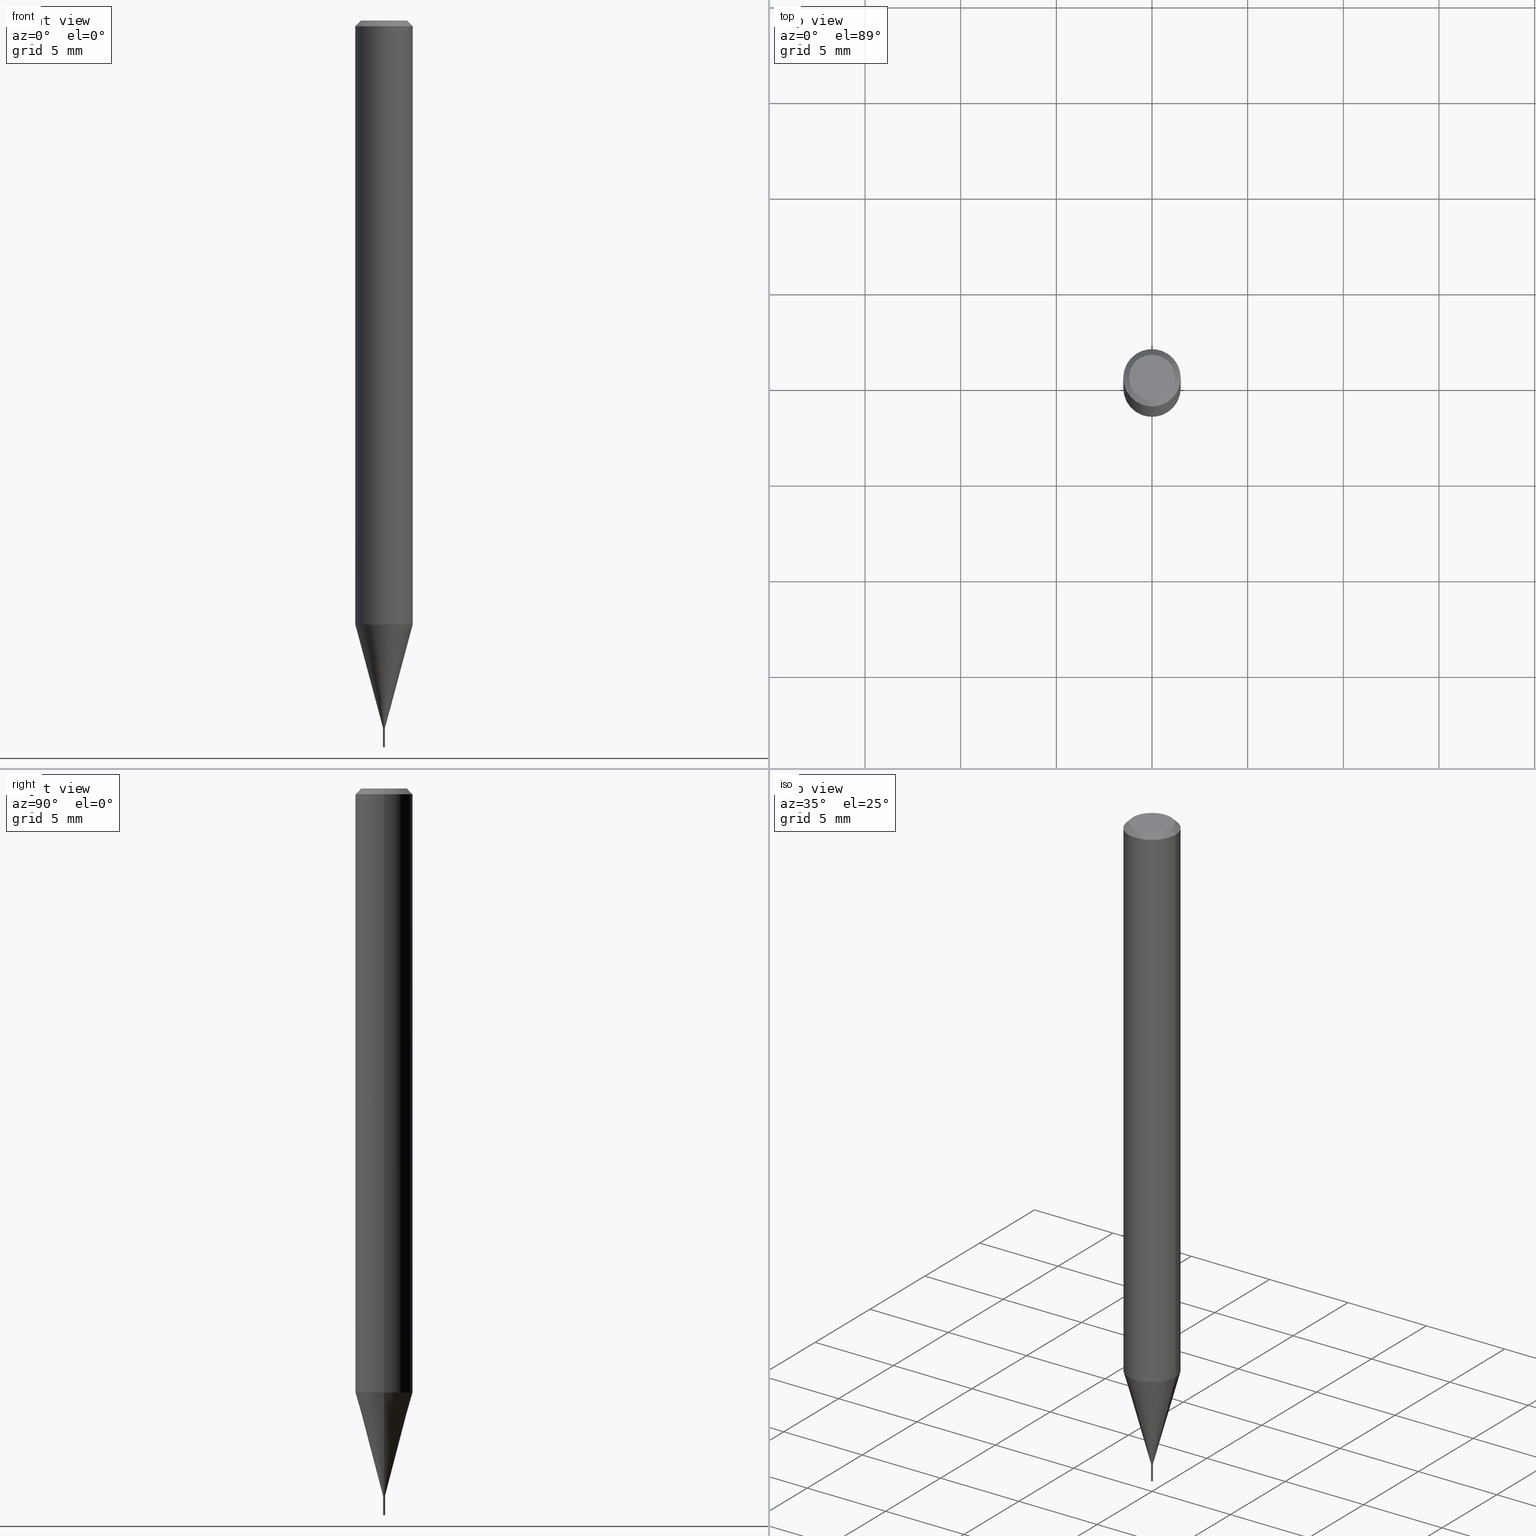
[diagram: canonical four-view strip — front | top / right | iso, engineering-drawing reading convention]
A machine part, canonical four-view strip (front | top / right | iso — engineering-drawing reading convention). The complete STEP part file that produces these views, byte-faithful:
ISO-10303-21;
HEADER;
FILE_DESCRIPTION (( 'STEP AP203' ),
    '1' );
FILE_NAME ('08234.STEP',
    '2024-04-24T13:52:40',
    ( '' ),
    ( '' ),
    'SwSTEP 2.0',
    'SolidWorks 2023',
    '' );
FILE_SCHEMA (( 'CONFIG_CONTROL_DESIGN' ));
ENDSEC;

DATA;
#1 = LINE ( 'NONE', #305, #159 ) ;
#2 = ORIENTED_EDGE ( 'NONE', *, *, #13, .F. ) ;
#3 = CARTESIAN_POINT ( 'NONE',  ( 3.632222364028806804E-29, -5.261473852322382028E-15, -1.496099999999999985 ) ) ;
#4 = EDGE_LOOP ( 'NONE', ( #396, #474, #289, #187 ) ) ;
#5 = CALENDAR_DATE ( 2024, 24, 4 ) ;
#6 = AXIS2_PLACEMENT_3D ( 'NONE', #174, #472, #475 ) ;
#7 = FACE_OUTER_BOUND ( 'NONE', #198, .T. ) ;
#8 = VERTEX_POINT ( 'NONE', #139 ) ;
#9 = APPLICATION_PROTOCOL_DEFINITION ( 'international standard', 'config_control_design', 1994, #88 ) ;
#10 = DIRECTION ( 'NONE',  ( 2.427793840003212946E-29, -3.516792896412260178E-15, -1.000000000000000000 ) ) ;
#11 = COORDINATED_UNIVERSAL_TIME_OFFSET ( 5, 0, .BEHIND. ) ;
#12 = LINE ( 'NONE', #247, #114 ) ;
#13 = EDGE_CURVE ( 'NONE', #83, #387, #425, .T. ) ;
#14 = CONICAL_SURFACE ( 'NONE', #283, 65.52281426576558943, 1.029744258676635216 ) ;
#15 = CALENDAR_DATE ( 2024, 24, 4 ) ;
#16 = CARTESIAN_POINT ( 'NONE',  ( 0.05905000000000017180, -4.752254897268105035E-15, -1.242999898887816812 ) ) ;
#17 = ORIENTED_EDGE ( 'NONE', *, *, #290, .T. ) ;
#18 = DIRECTION ( 'NONE',  ( 1.000000000000000000, -6.982962677686266711E-15, 4.876176775795935793E-29 ) ) ;
#19 = SECURITY_CLASSIFICATION ( '', '', #164 ) ;
#20 = ORIENTED_EDGE ( 'NONE', *, *, #169, .T. ) ;
#21 = CONICAL_SURFACE ( 'NONE', #471, 0.05904999999999999832, 0.7853981633974452814 ) ;
#22 = DIRECTION ( 'NONE',  ( -2.445468806185136597E-29, 3.491481338843145583E-15, 1.000000000000000000 ) ) ;
#23 = CARTESIAN_POINT ( 'NONE',  ( 3.561091675566795553E-29, -5.084295125623388153E-15, -1.456199999999999939 ) ) ;
#24 = DIRECTION ( 'NONE',  ( -1.000000000000000000, 6.982962677686266711E-15, 0.000000000000000000 ) ) ;
#25 = CARTESIAN_POINT ( 'NONE',  ( 3.560847128686176768E-29, -5.083945977489503852E-15, -1.456099999999999728 ) ) ;
#26 = EDGE_CURVE ( 'NONE', #260, #214, #173, .T. ) ;
#27 = CARTESIAN_POINT ( 'NONE',  ( 3.562314409969888354E-29, -5.086040866292809657E-15, -1.456699999999999884 ) ) ;
#28 = EDGE_CURVE ( 'NONE', #387, #83, #450, .T. ) ;
#29 = DIRECTION ( 'NONE',  ( 2.445468806185136597E-29, -3.491481338843145583E-15, -1.000000000000000000 ) ) ;
#30 = APPLICATION_PROTOCOL_DEFINITION ( 'international standard', 'config_control_design', 1994, #331 ) ;
#31 = EDGE_LOOP ( 'NONE', ( #285, #369, #118, #183 ) ) ;
#32 = CARTESIAN_POINT ( 'NONE',  ( 0.000000000000000000, 0.000000000000000000, 0.000000000000000000 ) ) ;
#33 = DIRECTION ( 'NONE',  ( -2.445468806185136597E-29, 3.491481338843145583E-15, 1.000000000000000000 ) ) ;
#34 = ADVANCED_FACE ( 'NONE', ( #256 ), #327, .T. ) ;
#35 = DIRECTION ( 'NONE',  ( -5.985567269335875015E-15, -0.8571673007021006763, 0.5150380749100736955 ) ) ;
#36 = VECTOR ( 'NONE', #86, 39.37007874015748143 ) ;
#37 = CARTESIAN_POINT ( 'NONE',  ( 0.000000000000000000, 0.000000000000000000, 0.000000000000000000 ) ) ;
#38 = EDGE_LOOP ( 'NONE', ( #44, #434, #430, #2 ) ) ;
#39 = DIRECTION ( 'NONE',  ( -2.438088387897960049E-29, 3.491481338843145188E-15, 1.000000000000000000 ) ) ;
#40 = CARTESIAN_POINT ( 'NONE',  ( 2.888098660104664204E-31, -4.123439461173780263E-17, -0.01181000000000007218 ) ) ;
#41 = CC_DESIGN_PERSON_AND_ORGANIZATION_ASSIGNMENT ( #50, #348, ( #341 ) ) ;
#42 = DIRECTION ( 'NONE',  ( -2.445468806185136877E-29, 3.491481338843145188E-15, 1.000000000000000000 ) ) ;
#43 = EDGE_CURVE ( 'NONE', #273, #142, #107, .T. ) ;
#44 = ORIENTED_EDGE ( 'NONE', *, *, #195, .F. ) ;
#45 = DATE_AND_TIME ( #15, #372 ) ;
#46 = AXIS2_PLACEMENT_3D ( 'NONE', #488, #117, #267 ) ;
#47 = APPROVAL_PERSON_ORGANIZATION ( #244, #170, #165 ) ;
#48 = CC_DESIGN_DATE_AND_TIME_ASSIGNMENT ( #52, #167, ( #19 ) ) ;
#49 = DATE_AND_TIME ( #354, #435 ) ;
#50 = PERSON_AND_ORGANIZATION ( #412, #349 ) ;
#51 = CC_DESIGN_DATE_AND_TIME_ASSIGNMENT ( #49, #462, ( #404 ) ) ;
#52 = DATE_AND_TIME ( #395, #478 ) ;
#53 = AXIS2_PLACEMENT_3D ( 'NONE', #37, #194, #309 ) ;
#54 = ORIENTED_EDGE ( 'NONE', *, *, #225, .T. ) ;
#55 = EDGE_LOOP ( 'NONE', ( #137, #222, #381, #468 ) ) ;
#56 = FACE_OUTER_BOUND ( 'NONE', #315, .T. ) ;
#57 = ORIENTED_EDGE ( 'NONE', *, *, #241, .F. ) ;
#58 = ADVANCED_FACE ( 'NONE', ( #339 ), #21, .T. ) ;
#59 = DIRECTION ( 'NONE',  ( 2.438088387897960049E-29, -3.491481338843145188E-15, -1.000000000000000000 ) ) ;
#60 = DIRECTION ( 'NONE',  ( -6.982962677686265922E-15, -1.000000000000000000, 0.000000000000000000 ) ) ;
#61 = CIRCLE ( 'NONE', #101, 0.05905000000000017180 ) ;
#62 = DIRECTION ( 'NONE',  ( -2.445468806185136597E-29, 3.491481338843145583E-15, 1.000000000000000000 ) ) ;
#63 = VERTEX_POINT ( 'NONE', #102 ) ;
#64 = EDGE_CURVE ( 'NONE', #142, #273, #61, .T. ) ;
#65 = EDGE_LOOP ( 'NONE', ( #301, #296, #202, #68 ) ) ;
#66 = CARTESIAN_POINT ( 'NONE',  ( 1.385558334735851946E-17, 0.001949999999994914135, -1.456699999999999884 ) ) ;
#67 = LOCAL_TIME ( 9, 52, 40.00000000000000000, #123 ) ;
#68 = ORIENTED_EDGE ( 'NONE', *, *, #446, .F. ) ;
#69 = CIRCLE ( 'NONE', #431, 0.001949999999999999910 ) ;
#70 =( LENGTH_UNIT ( ) NAMED_UNIT ( * ) SI_UNIT ( $, .METRE. ) );
#71 = CARTESIAN_POINT ( 'NONE',  ( -1.361677722145259425E-17, -0.001950000000005085686, -1.456699999999999884 ) ) ;
#72 = EDGE_CURVE ( 'NONE', #317, #214, #411, .T. ) ;
#73 = LINE ( 'NONE', #116, #334 ) ;
#74 = DIRECTION ( 'NONE',  ( 1.000000000000000000, -6.982962677686433160E-15, 0.000000000000000000 ) ) ;
#75 = DESIGN_CONTEXT ( 'detailed design', #88, 'design' ) ;
#76 = DIRECTION ( 'NONE',  ( 1.000000000000000000, -6.982962677686159425E-15, 0.000000000000000000 ) ) ;
#77 = VERTEX_POINT ( 'NONE', #3 ) ;
#78 = AXIS2_PLACEMENT_3D ( 'NONE', #422, #33, #76 ) ;
#79 = DIRECTION ( 'NONE',  ( -2.427793840003213226E-29, 3.516792896412260178E-15, 1.000000000000000000 ) ) ;
#80 = CARTESIAN_POINT ( 'NONE',  ( -9.192446515852977334E-28, 1.332318107381657182E-13, 37.87397874015748300 ) ) ;
#81 = ORIENTED_EDGE ( 'NONE', *, *, #485, .F. ) ;
#82 = DIRECTION ( 'NONE',  ( 1.000000000000000000, -6.982962677686266711E-15, 4.876185090822587894E-29 ) ) ;
#83 = VERTEX_POINT ( 'NONE', #229 ) ;
#84 = CIRCLE ( 'NONE', #6, 0.001949999999999999910 ) ;
#85 = PERSON_AND_ORGANIZATION ( #412, #349 ) ;
#86 = DIRECTION ( 'NONE',  ( -0.2588190451025214611, 5.211531920934550253E-15, 0.9659258262890679791 ) ) ;
#87 = APPROVAL_DATE_TIME ( #316, #465 ) ;
#88 = APPLICATION_CONTEXT ( 'configuration controlled 3d designs of mechanical parts and assemblies' ) ;
#89 = ORIENTED_EDGE ( 'NONE', *, *, #399, .F. ) ;
#90 = APPROVAL_PERSON_ORGANIZATION ( #392, #138, #357 ) ;
#91 = CONICAL_SURFACE ( 'NONE', #228, 0.05904999999999999832, 0.7853981633974452814 ) ;
#92 = VECTOR ( 'NONE', #481, 39.37007874015748143 ) ;
#93 = ORIENTED_EDGE ( 'NONE', *, *, #28, .T. ) ;
#94 = ADVANCED_FACE ( 'NONE', ( #189 ), #106, .T. ) ;
#95 = EDGE_LOOP ( 'NONE', ( #172, #235, #89, #470 ) ) ;
#96 = FACE_OUTER_BOUND ( 'NONE', #125, .T. ) ;
#97 = ORIENTED_EDGE ( 'NONE', *, *, #467, .T. ) ;
#98 = DIRECTION ( 'NONE',  ( 1.000000000000000000, -6.982962677686266711E-15, 4.876185090822587894E-29 ) ) ;
#99 = ADVANCED_FACE ( 'NONE', ( #231 ), #140, .T. ) ;
#100 = DIRECTION ( 'NONE',  ( 1.000000000000000000, -6.982962677686159425E-15, 0.000000000000000000 ) ) ;
#101 = AXIS2_PLACEMENT_3D ( 'NONE', #255, #337, #403 ) ;
#102 = CARTESIAN_POINT ( 'NONE',  ( 0.001949999999999999910, -5.097562754710991580E-15, -1.456099999999999728 ) ) ;
#103 = CYLINDRICAL_SURFACE ( 'NONE', #105, 0.001949999999999999910 ) ;
#104 = CARTESIAN_POINT ( 'NONE',  ( -1.361677722145259733E-17, -0.001950000000005086337, -1.456699999999999884 ) ) ;
#105 = AXIS2_PLACEMENT_3D ( 'NONE', #181, #444, #18 ) ;
#106 = CYLINDRICAL_SURFACE ( 'NONE', #46, 0.001950000000000000344 ) ;
#107 = CIRCLE ( 'NONE', #149, 0.05905000000000017180 ) ;
#108 = DIRECTION ( 'NONE',  ( -6.982962677686265922E-15, -1.000000000000000000, 0.000000000000000000 ) ) ;
#109 = CARTESIAN_POINT ( 'NONE',  ( 0.000000000000000000, 0.000000000000000000, 0.000000000000000000 ) ) ;
#110 = CARTESIAN_POINT ( 'NONE',  ( -9.192446515852977334E-28, 1.332318107381657182E-13, 37.87397874015748300 ) ) ;
#111 = CYLINDRICAL_SURFACE ( 'NONE', #313, 0.001950000000000000344 ) ;
#112 = FACE_OUTER_BOUND ( 'NONE', #227, .T. ) ;
#113 = CLOSED_SHELL ( 'NONE', ( #394, #153, #127, #94, #239 ) ) ;
#114 = VECTOR ( 'NONE', #208, 39.37007874015748854 ) ;
#115 = ORIENTED_EDGE ( 'NONE', *, *, #277, .F. ) ;
#116 = CARTESIAN_POINT ( 'NONE',  ( -0.05904999999999999832, 3.711095515056362547E-16, -0.01181000000000007218 ) ) ;
#117 = DIRECTION ( 'NONE',  ( -2.427793840003213226E-29, 3.516792896412260178E-15, 1.000000000000000000 ) ) ;
#118 = ORIENTED_EDGE ( 'NONE', *, *, #485, .T. ) ;
#119 = ORIENTED_EDGE ( 'NONE', *, *, #72, .T. ) ;
#120 = DATE_AND_TIME ( #5, #67 ) ;
#121 = LINE ( 'NONE', #281, #36 ) ;
#122 = AXIS2_PLACEMENT_3D ( 'NONE', #109, #377, #448 ) ;
#123 = COORDINATED_UNIVERSAL_TIME_OFFSET ( 5, 0, .BEHIND. ) ;
#124 = APPROVAL_STATUS ( 'not_yet_approved' ) ;
#125 = EDGE_LOOP ( 'NONE', ( #93, #17, #362, #154 ) ) ;
#126 = MANIFOLD_SOLID_BREP ( 'Body-Move/Copy2[1]', #113 ) ;
#127 = ADVANCED_FACE ( 'NONE', ( #344 ), #364, .T. ) ;
#128 = APPROVAL_PERSON_ORGANIZATION ( #355, #465, #433 ) ;
#129 = AXIS2_PLACEMENT_3D ( 'NONE', #440, #438, #480 ) ;
#130 = VECTOR ( 'NONE', #424, 39.37007874015748143 ) ;
#131 = ORIENTED_EDGE ( 'NONE', *, *, #248, .F. ) ;
#132 = EDGE_CURVE ( 'NONE', #387, #63, #483, .T. ) ;
#133 = DIRECTION ( 'NONE',  ( 1.000000000000000000, -6.982962677686433160E-15, 0.000000000000000000 ) ) ;
#134 = ORIENTED_EDGE ( 'NONE', *, *, #195, .T. ) ;
#135 = CARTESIAN_POINT ( 'NONE',  ( -0.001949999999999999910, 1.385558334732195299E-17, -9.591923425997065611E-32 ) ) ;
#136 = ADVANCED_FACE ( 'NONE', ( #311 ), #166, .T. ) ;
#137 = ORIENTED_EDGE ( 'NONE', *, *, #290, .F. ) ;
#138 = APPROVAL ( #246, 'UNSPECIFIED' ) ;
#139 = CARTESIAN_POINT ( 'NONE',  ( -0.001449999999999999900, -5.073088769450176560E-15, -1.456699999999999884 ) ) ;
#140 = CONICAL_SURFACE ( 'NONE', #286, 0.001449999999999999900, 0.7853981633975491983 ) ;
#141 = DIRECTION ( 'NONE',  ( -2.427793840003213226E-29, 3.516792896412260178E-15, 1.000000000000000000 ) ) ;
#142 = VERTEX_POINT ( 'NONE', #458 ) ;
#143 = CARTESIAN_POINT ( 'NONE',  ( 0.001449999999999999900, -5.096166162175455166E-15, -1.456699999999999884 ) ) ;
#144 = CARTESIAN_POINT ( 'NONE',  ( 2.888098660104664204E-31, -4.123439461173780263E-17, -0.01181000000000007218 ) ) ;
#145 = EDGE_CURVE ( 'NONE', #142, #168, #1, .T. ) ;
#146 = DIRECTION ( 'NONE',  ( -2.427793840003213226E-29, 3.516792896412260178E-15, 1.000000000000000000 ) ) ;
#147 = CONICAL_SURFACE ( 'NONE', #389, 0.001449999999999999900, 0.7853981633975491983 ) ;
#148 = DIRECTION ( 'NONE',  ( -6.982962677686265133E-15, -1.000000000000000000, 3.602282186708734483E-15 ) ) ;
#149 = AXIS2_PLACEMENT_3D ( 'NONE', #445, #180, #332 ) ;
#150 = CARTESIAN_POINT ( 'NONE',  ( 0.001949999999999999910, -5.097562754710991580E-15, -1.456099999999999728 ) ) ;
#151 = CARTESIAN_POINT ( 'NONE',  ( -0.001449999999999999900, -5.075737996624287761E-15, -1.456699999999999884 ) ) ;
#152 = CARTESIAN_POINT ( 'NONE',  ( 3.632222364028806804E-29, -5.261473852322381240E-15, -1.496099999999999985 ) ) ;
#153 = ADVANCED_FACE ( 'NONE', ( #112 ), #14, .T. ) ;
#154 = ORIENTED_EDGE ( 'NONE', *, *, #132, .F. ) ;
#155 = CARTESIAN_POINT ( 'NONE',  ( -0.001949999999999999910, -5.070264968209125181E-15, -1.456099999999999728 ) ) ;
#156 = CARTESIAN_POINT ( 'NONE',  ( 3.562314409969888354E-29, -5.086040866292809657E-15, -1.456699999999999884 ) ) ;
#157 = ADVANCED_FACE ( 'NONE', ( #7 ), #423, .T. ) ;
#158 = AXIS2_PLACEMENT_3D ( 'NONE', #179, #335, #98 ) ;
#159 = VECTOR ( 'NONE', #350, 39.37007874015748143 ) ;
#160 = ORIENTED_EDGE ( 'NONE', *, *, #26, .T. ) ;
#161 = PERSON_AND_ORGANIZATION ( #412, #349 ) ;
#162 = PLANE ( 'NONE',  #257 ) ;
#163 = EDGE_LOOP ( 'NONE', ( #373, #134, #326, #131 ) ) ;
#164 = SECURITY_CLASSIFICATION_LEVEL ( 'unclassified' ) ;
#165 = APPROVAL_ROLE ( '' ) ;
#166 = CONICAL_SURFACE ( 'NONE', #78, 0.001949999999999999910, 0.2617993877991501850 ) ;
#167 = DATE_TIME_ROLE ( 'classification_date' ) ;
#168 = VERTEX_POINT ( 'NONE', #380 ) ;
#169 = EDGE_CURVE ( 'NONE', #77, #317, #265, .T. ) ;
#170 = APPROVAL ( #124, 'UNSPECIFIED' ) ;
#171 = CYLINDRICAL_SURFACE ( 'NONE', #242, 0.001949999999999999910 ) ;
#172 = ORIENTED_EDGE ( 'NONE', *, *, #360, .T. ) ;
#173 = CIRCLE ( 'NONE', #209, 0.001949999999999999910 ) ;
#174 = CARTESIAN_POINT ( 'NONE',  ( 3.560847128686176768E-29, -5.083945977489503852E-15, -1.456099999999999728 ) ) ;
#175 =( GEOMETRIC_REPRESENTATION_CONTEXT ( 3 ) GLOBAL_UNCERTAINTY_ASSIGNED_CONTEXT ( ( #400 ) ) GLOBAL_UNIT_ASSIGNED_CONTEXT ( ( #268, #378, #490 ) ) REPRESENTATION_CONTEXT ( 'NONE', 'WORKASPACE' ) );
#176 = ORIENTED_EDGE ( 'NONE', *, *, #336, .F. ) ;
#177 = CARTESIAN_POINT ( 'NONE',  ( 3.655124894132341862E-29, -5.220481956815828847E-15, -1.494928321792896142 ) ) ;
#178 = VERTEX_POINT ( 'NONE', #192 ) ;
#179 = CARTESIAN_POINT ( 'NONE',  ( 8.265746106709734507E-48, -1.180129479067563789E-33, -3.380025165646692144E-19 ) ) ;
#180 = DIRECTION ( 'NONE',  ( -2.445468806185136597E-29, 3.491481338843145583E-15, 1.000000000000000000 ) ) ;
#181 = CARTESIAN_POINT ( 'NONE',  ( 0.000000000000000000, 0.000000000000000000, 0.000000000000000000 ) ) ;
#182 = AXIS2_PLACEMENT_3D ( 'NONE', #271, #427, #82 ) ;
#183 = ORIENTED_EDGE ( 'NONE', *, *, #232, .T. ) ;
#184 = AXIS2_PLACEMENT_3D ( 'NONE', #177, #141, #479 ) ;
#185 = CC_DESIGN_PERSON_AND_ORGANIZATION_ASSIGNMENT ( #161, #280, ( #203 ) ) ;
#186 = DIRECTION ( 'NONE',  ( 1.000000000000000000, 0.000000000000000000, 0.000000000000000000 ) ) ;
#187 = ORIENTED_EDGE ( 'NONE', *, *, #489, .F. ) ;
#188 = DIRECTION ( 'NONE',  ( 0.000000000000000000, 0.000000000000000000, 1.000000000000000000 ) ) ;
#189 = FACE_OUTER_BOUND ( 'NONE', #482, .T. ) ;
#190 = EDGE_CURVE ( 'NONE', #63, #455, #407, .T. ) ;
#191 = DIRECTION ( 'NONE',  ( -2.427793840003213226E-29, 3.516792896412260178E-15, 1.000000000000000000 ) ) ;
#192 = CARTESIAN_POINT ( 'NONE',  ( -0.04724000000000000421, 3.504923541997677355E-16, -3.380025165670481712E-19 ) ) ;
#193 = VECTOR ( 'NONE', #237, 39.37007874015748854 ) ;
#194 = DIRECTION ( 'NONE',  ( -2.445468806185136597E-29, 3.491481338843145583E-15, 1.000000000000000000 ) ) ;
#195 = EDGE_CURVE ( 'NONE', #8, #83, #233, .T. ) ;
#196 = DIRECTION ( 'NONE',  ( 1.000000000000000000, -6.982962677686265922E-15, 4.876176775795935793E-29 ) ) ;
#197 = DIRECTION ( 'NONE',  ( -2.445468806185136597E-29, 3.491481338843145583E-15, 1.000000000000000000 ) ) ;
#198 = EDGE_LOOP ( 'NONE', ( #292, #371, #461, #310 ) ) ;
#199 = CARTESIAN_POINT ( 'NONE',  ( 0.05904999999999999832, -4.535783407291118600E-16, -0.01181000000000007218 ) ) ;
#200 = CC_DESIGN_SECURITY_CLASSIFICATION ( #19, ( #203 ) ) ;
#201 = CLOSED_SHELL ( 'NONE', ( #367, #278, #215, #136, #390, #314, #34, #157, #58, #299, #477, #99 ) ) ;
#202 = ORIENTED_EDGE ( 'NONE', *, *, #43, .F. ) ;
#203 = PRODUCT_DEFINITION_FORMATION_WITH_SPECIFIED_SOURCE ( 'ANY', '', #341, .NOT_KNOWN. ) ;
#204 = APPROVAL_DATE_TIME ( #45, #170 ) ;
#205 = CARTESIAN_POINT ( 'NONE',  ( 3.562314409969888354E-29, -5.086040866292809657E-15, -1.456699999999999884 ) ) ;
#206 = EDGE_CURVE ( 'NONE', #213, #168, #464, .T. ) ;
#207 = COORDINATED_UNIVERSAL_TIME_OFFSET ( 5, 0, .BEHIND. ) ;
#208 = DIRECTION ( 'NONE',  ( 6.090539988449709016E-15, 0.8571673007021042290, 0.5150380749100677003 ) ) ;
#209 = AXIS2_PLACEMENT_3D ( 'NONE', #406, #258, #60 ) ;
#210 = PERSON_AND_ORGANIZATION_ROLE ( 'creator' ) ;
#211 = CIRCLE ( 'NONE', #333, 0.05904999999999999832 ) ;
#212 = PRODUCT_RELATED_PRODUCT_CATEGORY ( 'detail', '', ( #341 ) ) ;
#213 = VERTEX_POINT ( 'NONE', #199 ) ;
#214 = VERTEX_POINT ( 'NONE', #71 ) ;
#215 = ADVANCED_FACE ( 'NONE', ( #375 ), #240, .T. ) ;
#216 = DIRECTION ( 'NONE',  ( -2.445468806185136877E-29, 3.491481338843145188E-15, 1.000000000000000000 ) ) ;
#217 = VERTEX_POINT ( 'NONE', #454 ) ;
#218 = VECTOR ( 'NONE', #306, 39.37007874015748143 ) ;
#219 = CARTESIAN_POINT ( 'NONE',  ( 3.562314409969888354E-29, -5.086040866292809657E-15, -1.456699999999999884 ) ) ;
#220 = ORIENTED_EDGE ( 'NONE', *, *, #360, .F. ) ;
#221 = DIRECTION ( 'NONE',  ( 1.000000000000000000, -6.982962677686159425E-15, 0.000000000000000000 ) ) ;
#222 = ORIENTED_EDGE ( 'NONE', *, *, #13, .T. ) ;
#223 = DIMENSIONAL_EXPONENTS ( 1.000000000000000000, 0.000000000000000000, 0.000000000000000000, 0.000000000000000000, 0.000000000000000000, 0.000000000000000000, 0.000000000000000000 ) ;
#224 = CARTESIAN_POINT ( 'NONE',  ( -1.361677722145167443E-17, -0.001950000000005221211, -1.494928321792896142 ) ) ;
#225 = EDGE_CURVE ( 'NONE', #178, #217, #297, .T. ) ;
#226 = VECTOR ( 'NONE', #262, 39.37007874015748143 ) ;
#227 = EDGE_LOOP ( 'NONE', ( #476, #384, #220 ) ) ;
#228 = AXIS2_PLACEMENT_3D ( 'NONE', #402, #437, #24 ) ;
#229 = CARTESIAN_POINT ( 'NONE',  ( -0.001949999999999999910, -5.070264968209125181E-15, -1.456199999999999939 ) ) ;
#230 = CARTESIAN_POINT ( 'NONE',  ( 0.05905000000000008159, -4.123439461173746736E-16, 2.879382386107504424E-30 ) ) ;
#231 = FACE_OUTER_BOUND ( 'NONE', #38, .T. ) ;
#232 = EDGE_CURVE ( 'NONE', #168, #213, #211, .T. ) ;
#233 = LINE ( 'NONE', #151, #193 ) ;
#234 = AXIS2_PLACEMENT_3D ( 'NONE', #307, #453, #383 ) ;
#235 = ORIENTED_EDGE ( 'NONE', *, *, #277, .T. ) ;
#236 = CARTESIAN_POINT ( 'NONE',  ( 3.562314409969888354E-29, -5.086040866292809657E-15, -1.456699999999999884 ) ) ;
#237 = DIRECTION ( 'NONE',  ( -0.7071067811866187380, 7.493145998870611329E-15, 0.7071067811864760744 ) ) ;
#238 = ORIENTED_EDGE ( 'NONE', *, *, #345, .T. ) ;
#239 = ADVANCED_FACE ( 'NONE', ( #386 ), #162, .F. ) ;
#240 = CYLINDRICAL_SURFACE ( 'NONE', #53, 0.05905000000000008159 ) ;
#241 = EDGE_CURVE ( 'NONE', #455, #142, #121, .T. ) ;
#242 = AXIS2_PLACEMENT_3D ( 'NONE', #325, #469, #304 ) ;
#243 = AXIS2_PLACEMENT_3D ( 'NONE', #25, #409, #221 ) ;
#244 = PERSON_AND_ORGANIZATION ( #412, #349 ) ;
#245 = EDGE_CURVE ( 'NONE', #77, #298, #12, .T. ) ;
#246 = APPROVAL_STATUS ( 'not_yet_approved' ) ;
#247 = CARTESIAN_POINT ( 'NONE',  ( 3.684168154260723154E-29, -5.187731160500523742E-15, -1.496099999999999985 ) ) ;
#248 = EDGE_CURVE ( 'NONE', #473, #387, #356, .T. ) ;
#249 = EDGE_CURVE ( 'NONE', #8, #473, #379, .T. ) ;
#250 = APPROVAL_STATUS ( 'not_yet_approved' ) ;
#251 = VECTOR ( 'NONE', #439, 39.37007874015748143 ) ;
#252 = CIRCLE ( 'NONE', #184, 0.001950000000000000995 ) ;
#253 = ORIENTED_EDGE ( 'NONE', *, *, #420, .T. ) ;
#254 = PLANE ( 'NONE',  #457 ) ;
#255 = CARTESIAN_POINT ( 'NONE',  ( 3.039717478821434878E-29, -4.339910951150729326E-15, -1.242999898887816812 ) ) ;
#256 = FACE_OUTER_BOUND ( 'NONE', #414, .T. ) ;
#257 = AXIS2_PLACEMENT_3D ( 'NONE', #205, #10, #319 ) ;
#258 = DIRECTION ( 'NONE',  ( -2.427793840003213226E-29, 3.516792896412260178E-15, 1.000000000000000000 ) ) ;
#259 = DIRECTION ( 'NONE',  ( 1.000000000000000000, -6.982962677686433160E-15, 0.000000000000000000 ) ) ;
#260 = VERTEX_POINT ( 'NONE', #66 ) ;
#261 = CARTESIAN_POINT ( 'NONE',  ( 3.562314409969888354E-29, -5.086040866292809657E-15, -1.456699999999999884 ) ) ;
#262 = DIRECTION ( 'NONE',  ( -2.427793840003212946E-29, 3.516792896412260178E-15, 1.000000000000000000 ) ) ;
#263 = LINE ( 'NONE', #150, #218 ) ;
#264 = AXIS2_PLACEMENT_3D ( 'NONE', #23, #328, #100 ) ;
#265 = LINE ( 'NONE', #152, #486 ) ;
#266 = PLANE ( 'NONE',  #398 ) ;
#267 = DIRECTION ( 'NONE',  ( -6.982962677686265922E-15, -1.000000000000000000, 0.000000000000000000 ) ) ;
#268 =( CONVERSION_BASED_UNIT ( 'INCH', #452 ) LENGTH_UNIT ( ) NAMED_UNIT ( #223 ) );
#269 = CARTESIAN_POINT ( 'NONE',  ( 0.001949999999999999910, -1.361677722148821933E-17, 9.508544712802073999E-32 ) ) ;
#270 = CARTESIAN_POINT ( 'NONE',  ( 0.05904999999999999832, -4.463468013801466955E-16, -0.01181000000000007218 ) ) ;
#271 = CARTESIAN_POINT ( 'NONE',  ( 8.265746106709734507E-48, -1.180129479067563789E-33, -3.380025165646692144E-19 ) ) ;
#272 = AXIS2_PLACEMENT_3D ( 'NONE', #219, #22, #405 ) ;
#273 = VERTEX_POINT ( 'NONE', #16 ) ;
#274 = DIRECTION ( 'NONE',  ( -0.7071067811865453523, 2.468850131082234184E-15, -0.7071067811865496822 ) ) ;
#275 = DIRECTION ( 'NONE',  ( 1.000000000000000000, -6.982962677686159425E-15, 0.000000000000000000 ) ) ;
#276 = EDGE_LOOP ( 'NONE', ( #54, #347 ) ) ;
#277 = EDGE_CURVE ( 'NONE', #298, #260, #287, .T. ) ;
#278 = ADVANCED_FACE ( 'NONE', ( #56 ), #91, .T. ) ;
#279 = EDGE_LOOP ( 'NONE', ( #330, #160 ) ) ;
#280 = PERSON_AND_ORGANIZATION_ROLE ( 'creator' ) ;
#281 = CARTESIAN_POINT ( 'NONE',  ( -0.001949999999999999910, -5.070090394142181847E-15, -1.456099999999999728 ) ) ;
#282 = CC_DESIGN_APPROVAL ( #170, ( #203 ) ) ;
#283 = AXIS2_PLACEMENT_3D ( 'NONE', #80, #451, #302 ) ;
#284 = EDGE_CURVE ( 'NONE', #473, #8, #312, .T. ) ;
#285 = ORIENTED_EDGE ( 'NONE', *, *, #467, .F. ) ;
#286 = AXIS2_PLACEMENT_3D ( 'NONE', #156, #429, #74 ) ;
#287 = LINE ( 'NONE', #410, #251 ) ;
#288 = CC_DESIGN_PERSON_AND_ORGANIZATION_ASSIGNMENT ( #322, #318, ( #19 ) ) ;
#289 = ORIENTED_EDGE ( 'NONE', *, *, #206, .F. ) ;
#290 = EDGE_CURVE ( 'NONE', #83, #455, #368, .T. ) ;
#291 = CARTESIAN_POINT ( 'NONE',  ( 0.001949999999999999910, -5.097911902844876670E-15, -1.456199999999999939 ) ) ;
#292 = ORIENTED_EDGE ( 'NONE', *, *, #145, .F. ) ;
#293 = CC_DESIGN_PERSON_AND_ORGANIZATION_ASSIGNMENT ( #353, #393, ( #203 ) ) ;
#294 = PRODUCT_DEFINITION_SHAPE ( 'NONE', 'NONE',  #404 ) ;
#295 = FACE_OUTER_BOUND ( 'NONE', #276, .T. ) ;
#296 = ORIENTED_EDGE ( 'NONE', *, *, #241, .T. ) ;
#297 = CIRCLE ( 'NONE', #182, 0.04724000000000000421 ) ;
#298 = VERTEX_POINT ( 'NONE', #329 ) ;
#299 = ADVANCED_FACE ( 'NONE', ( #295 ), #254, .F. ) ;
#300 = CARTESIAN_POINT ( 'NONE',  ( 0.001449999999999999900, -5.096166162175455166E-15, -1.456699999999999884 ) ) ;
#301 = ORIENTED_EDGE ( 'NONE', *, *, #190, .T. ) ;
#302 = DIRECTION ( 'NONE',  ( -6.982962677686265133E-15, -1.000000000000000000, 3.602282186708734483E-15 ) ) ;
#303 = AXIS2_PLACEMENT_3D ( 'NONE', #32, #188, #186 ) ;
#304 = DIRECTION ( 'NONE',  ( 1.000000000000000000, -6.982962677686266711E-15, 4.876176775795935793E-29 ) ) ;
#305 = CARTESIAN_POINT ( 'NONE',  ( -0.05905000000000008159, 4.195754854663397395E-16, -2.904631170795525745E-30 ) ) ;
#306 = DIRECTION ( 'NONE',  ( 0.2588190451025214611, 1.565188264969620982E-15, 0.9659258262890679791 ) ) ;
#307 = CARTESIAN_POINT ( 'NONE',  ( 2.888098660104664204E-31, -4.123439461173780263E-17, -0.01181000000000007218 ) ) ;
#308 = CARTESIAN_POINT ( 'NONE',  ( 3.562314409969888354E-29, -5.086040866292809657E-15, -1.456699999999999884 ) ) ;
#309 = DIRECTION ( 'NONE',  ( 1.000000000000000000, -6.982962677686267499E-15, 4.876176775795936353E-29 ) ) ;
#310 = ORIENTED_EDGE ( 'NONE', *, *, #232, .F. ) ;
#311 = FACE_OUTER_BOUND ( 'NONE', #65, .T. ) ;
#312 = CIRCLE ( 'NONE', #272, 0.001449999999999999900 ) ;
#313 = AXIS2_PLACEMENT_3D ( 'NONE', #236, #146, #376 ) ;
#314 = ADVANCED_FACE ( 'NONE', ( #365 ), #103, .T. ) ;
#315 = EDGE_LOOP ( 'NONE', ( #176, #97, #324, #81 ) ) ;
#316 = DATE_AND_TIME ( #466, #484 ) ;
#317 = VERTEX_POINT ( 'NONE', #224 ) ;
#318 = PERSON_AND_ORGANIZATION_ROLE ( 'classification_officer' ) ;
#319 = DIRECTION ( 'NONE',  ( 6.982962677686265922E-15, 1.000000000000000000, -3.516792896412260178E-15 ) ) ;
#320 = APPROVAL_DATE_TIME ( #120, #138 ) ;
#321 = VECTOR ( 'NONE', #42, 39.37007874015748143 ) ;
#322 = PERSON_AND_ORGANIZATION ( #412, #349 ) ;
#323 = ADVANCED_BREP_SHAPE_REPRESENTATION ( '08234', ( #126, #459, #303 ), #175 ) ;
#324 = ORIENTED_EDGE ( 'NONE', *, *, #206, .T. ) ;
#325 = CARTESIAN_POINT ( 'NONE',  ( 0.000000000000000000, 0.000000000000000000, 0.000000000000000000 ) ) ;
#326 = ORIENTED_EDGE ( 'NONE', *, *, #28, .F. ) ;
#327 = CONICAL_SURFACE ( 'NONE', #243, 0.001949999999999999910, 0.2617993877991501850 ) ;
#328 = DIRECTION ( 'NONE',  ( -2.445468806185136597E-29, 3.491481338843145583E-15, 1.000000000000000000 ) ) ;
#329 = CARTESIAN_POINT ( 'NONE',  ( 1.385558334735850714E-17, 0.001949999999994780344, -1.494928321792896142 ) ) ;
#330 = ORIENTED_EDGE ( 'NONE', *, *, #399, .T. ) ;
#331 = APPLICATION_CONTEXT ( 'configuration controlled 3d designs of mechanical parts and assemblies' ) ;
#332 = DIRECTION ( 'NONE',  ( 1.000000000000000000, -6.982962677686260400E-15, 0.000000000000000000 ) ) ;
#333 = AXIS2_PLACEMENT_3D ( 'NONE', #40, #197, #346 ) ;
#334 = VECTOR ( 'NONE', #274, 39.37007874015748143 ) ;
#335 = DIRECTION ( 'NONE',  ( -2.445468806185136597E-29, 3.491481338843145583E-15, 1.000000000000000000 ) ) ;
#336 = EDGE_CURVE ( 'NONE', #217, #178, #449, .T. ) ;
#337 = DIRECTION ( 'NONE',  ( -2.445468806185136597E-29, 3.491481338843145583E-15, 1.000000000000000000 ) ) ;
#338 = MECHANICAL_CONTEXT ( 'NONE', #331, 'mechanical' ) ;
#339 = FACE_OUTER_BOUND ( 'NONE', #31, .T. ) ;
#340 = CARTESIAN_POINT ( 'NONE',  ( 3.655124894132341862E-29, -5.220481956815828847E-15, -1.494928321792896142 ) ) ;
#341 = PRODUCT ( '08234', '08234', '', ( #338 ) ) ;
#342 = DIRECTION ( 'NONE',  ( -2.427793840003213226E-29, 3.516792896412260178E-15, 1.000000000000000000 ) ) ;
#343 = DIRECTION ( 'NONE',  ( -2.445468806185136597E-29, 3.491481338843145583E-15, 1.000000000000000000 ) ) ;
#344 = FACE_OUTER_BOUND ( 'NONE', #401, .T. ) ;
#345 = EDGE_CURVE ( 'NONE', #455, #63, #84, .T. ) ;
#346 = DIRECTION ( 'NONE',  ( 1.000000000000000000, -6.982962677686266711E-15, 0.000000000000000000 ) ) ;
#347 = ORIENTED_EDGE ( 'NONE', *, *, #336, .T. ) ;
#348 = PERSON_AND_ORGANIZATION_ROLE ( 'design_owner' ) ;
#349 = ORGANIZATION ( 'UNSPECIFIED', 'UNSPECIFIED', '' ) ;
#350 = DIRECTION ( 'NONE',  ( -2.445468806185136877E-29, 3.491481338843145188E-15, 1.000000000000000000 ) ) ;
#351 = CIRCLE ( 'NONE', #363, 0.001950000000000000995 ) ;
#352 = ORIENTED_EDGE ( 'NONE', *, *, #26, .F. ) ;
#353 = PERSON_AND_ORGANIZATION ( #412, #349 ) ;
#354 = CALENDAR_DATE ( 2024, 24, 4 ) ;
#355 = PERSON_AND_ORGANIZATION ( #412, #349 ) ;
#356 = LINE ( 'NONE', #300, #397 ) ;
#357 = APPROVAL_ROLE ( '' ) ;
#358 = ORIENTED_EDGE ( 'NONE', *, *, #420, .F. ) ;
#359 = ORIENTED_EDGE ( 'NONE', *, *, #245, .F. ) ;
#360 = EDGE_CURVE ( 'NONE', #317, #298, #252, .T. ) ;
#361 = CARTESIAN_POINT ( 'NONE',  ( 4.132873053354867254E-48, -5.900647395337818946E-34, -1.690012582823346072E-19 ) ) ;
#362 = ORIENTED_EDGE ( 'NONE', *, *, #190, .F. ) ;
#363 = AXIS2_PLACEMENT_3D ( 'NONE', #340, #79, #108 ) ;
#364 = CONICAL_SURFACE ( 'NONE', #432, 65.52281426576558943, 1.029744258676635216 ) ;
#365 = FACE_OUTER_BOUND ( 'NONE', #55, .T. ) ;
#366 = ORIENTED_EDGE ( 'NONE', *, *, #64, .F. ) ;
#367 = ADVANCED_FACE ( 'NONE', ( #408 ), #147, .T. ) ;
#368 = LINE ( 'NONE', #135, #417 ) ;
#369 = ORIENTED_EDGE ( 'NONE', *, *, #225, .F. ) ;
#370 = DIRECTION ( 'NONE',  ( 0.7071067811866187380, -2.468850131083003717E-15, 0.7071067811864760744 ) ) ;
#371 = ORIENTED_EDGE ( 'NONE', *, *, #64, .T. ) ;
#372 = LOCAL_TIME ( 9, 52, 40.00000000000000000, #388 ) ;
#373 = ORIENTED_EDGE ( 'NONE', *, *, #284, .T. ) ;
#374 = LINE ( 'NONE', #230, #92 ) ;
#375 = FACE_OUTER_BOUND ( 'NONE', #4, .T. ) ;
#376 = DIRECTION ( 'NONE',  ( -6.982962677686265922E-15, -1.000000000000000000, 0.000000000000000000 ) ) ;
#377 = DIRECTION ( 'NONE',  ( -2.445468806185136597E-29, 3.491481338843145583E-15, 1.000000000000000000 ) ) ;
#378 =( NAMED_UNIT ( * ) PLANE_ANGLE_UNIT ( ) SI_UNIT ( $, .RADIAN. ) );
#379 = CIRCLE ( 'NONE', #456, 0.001449999999999999900 ) ;
#380 = CARTESIAN_POINT ( 'NONE',  ( -0.05904999999999999832, -1.770997187414892260E-15, -0.01181000000000007218 ) ) ;
#381 = ORIENTED_EDGE ( 'NONE', *, *, #132, .T. ) ;
#382 = LINE ( 'NONE', #270, #130 ) ;
#383 = DIRECTION ( 'NONE',  ( 1.000000000000000000, -6.982962677686266711E-15, 0.000000000000000000 ) ) ;
#384 = ORIENTED_EDGE ( 'NONE', *, *, #245, .T. ) ;
#385 = COORDINATED_UNIVERSAL_TIME_OFFSET ( 5, 0, .BEHIND. ) ;
#386 = FACE_OUTER_BOUND ( 'NONE', #279, .T. ) ;
#387 = VERTEX_POINT ( 'NONE', #291 ) ;
#388 = COORDINATED_UNIVERSAL_TIME_OFFSET ( 5, 0, .BEHIND. ) ;
#389 = AXIS2_PLACEMENT_3D ( 'NONE', #261, #413, #133 ) ;
#390 = ADVANCED_FACE ( 'NONE', ( #96 ), #171, .T. ) ;
#391 = CC_DESIGN_APPROVAL ( #138, ( #19 ) ) ;
#392 = PERSON_AND_ORGANIZATION ( #412, #349 ) ;
#393 = PERSON_AND_ORGANIZATION_ROLE ( 'design_supplier' ) ;
#394 = ADVANCED_FACE ( 'NONE', ( #421 ), #111, .T. ) ;
#395 = CALENDAR_DATE ( 2024, 24, 4 ) ;
#396 = ORIENTED_EDGE ( 'NONE', *, *, #43, .T. ) ;
#397 = VECTOR ( 'NONE', #370, 39.37007874015748854 ) ;
#398 = AXIS2_PLACEMENT_3D ( 'NONE', #447, #39, #196 ) ;
#399 = EDGE_CURVE ( 'NONE', #214, #260, #69, .T. ) ;
#400 = UNCERTAINTY_MEASURE_WITH_UNIT (LENGTH_MEASURE( 1.000000000000000082E-05 ), #268, 'distance_accuracy_value', 'NONE');
#401 = EDGE_LOOP ( 'NONE', ( #359, #20, #358 ) ) ;
#402 = CARTESIAN_POINT ( 'NONE',  ( 2.888098660104664204E-31, -4.123439461173780263E-17, -0.01181000000000007218 ) ) ;
#403 = DIRECTION ( 'NONE',  ( 1.000000000000000000, -6.982962677686260400E-15, 0.000000000000000000 ) ) ;
#404 = PRODUCT_DEFINITION ( 'UNKNOWN', '', #203, #75 ) ;
#405 = DIRECTION ( 'NONE',  ( 1.000000000000000000, -6.982962677686433160E-15, 0.000000000000000000 ) ) ;
#406 = CARTESIAN_POINT ( 'NONE',  ( 3.562314409969888354E-29, -5.086040866292809657E-15, -1.456699999999999884 ) ) ;
#407 = CIRCLE ( 'NONE', #426, 0.001949999999999999910 ) ;
#408 = FACE_OUTER_BOUND ( 'NONE', #163, .T. ) ;
#409 = DIRECTION ( 'NONE',  ( -2.445468806185136597E-29, 3.491481338843145583E-15, 1.000000000000000000 ) ) ;
#410 = CARTESIAN_POINT ( 'NONE',  ( 1.385558334735757807E-17, 0.001949999999994914569, -1.456699999999999884 ) ) ;
#411 = LINE ( 'NONE', #104, #226 ) ;
#412 = PERSON ( 'UNSPECIFIED', 'UNSPECIFIED', 'UNSPECIFIED', ('UNSPECIFIED'), ('UNSPECIFIED'), ('UNSPECIFIED') ) ;
#413 = DIRECTION ( 'NONE',  ( -2.445468806185136597E-29, 3.491481338843145583E-15, 1.000000000000000000 ) ) ;
#414 = EDGE_LOOP ( 'NONE', ( #57, #238, #428, #366 ) ) ;
#415 = CC_DESIGN_PERSON_AND_ORGANIZATION_ASSIGNMENT ( #85, #210, ( #404 ) ) ;
#416 = CC_DESIGN_APPROVAL ( #465, ( #404 ) ) ;
#417 = VECTOR ( 'NONE', #216, 39.37007874015748143 ) ;
#418 = FACE_OUTER_BOUND ( 'NONE', #442, .T. ) ;
#419 = CARTESIAN_POINT ( 'NONE',  ( 3.560847128686176768E-29, -5.083945977489503852E-15, -1.456099999999999728 ) ) ;
#420 = EDGE_CURVE ( 'NONE', #298, #317, #351, .T. ) ;
#421 = FACE_OUTER_BOUND ( 'NONE', #95, .T. ) ;
#422 = CARTESIAN_POINT ( 'NONE',  ( 3.560847128686176768E-29, -5.083945977489503852E-15, -1.456099999999999728 ) ) ;
#423 = CYLINDRICAL_SURFACE ( 'NONE', #122, 0.05905000000000008159 ) ;
#424 = DIRECTION ( 'NONE',  ( 0.7071067811865453523, -7.319954787623248157E-15, -0.7071067811865496822 ) ) ;
#425 = CIRCLE ( 'NONE', #264, 0.001949999999999999910 ) ;
#426 = AXIS2_PLACEMENT_3D ( 'NONE', #419, #343, #275 ) ;
#427 = DIRECTION ( 'NONE',  ( -2.445468806185136597E-29, 3.491481338843145583E-15, 1.000000000000000000 ) ) ;
#428 = ORIENTED_EDGE ( 'NONE', *, *, #446, .T. ) ;
#429 = DIRECTION ( 'NONE',  ( -2.445468806185136597E-29, 3.491481338843145583E-15, 1.000000000000000000 ) ) ;
#430 = ORIENTED_EDGE ( 'NONE', *, *, #248, .T. ) ;
#431 = AXIS2_PLACEMENT_3D ( 'NONE', #308, #191, #487 ) ;
#432 = AXIS2_PLACEMENT_3D ( 'NONE', #110, #342, #148 ) ;
#433 = APPROVAL_ROLE ( '' ) ;
#434 = ORIENTED_EDGE ( 'NONE', *, *, #249, .T. ) ;
#435 = LOCAL_TIME ( 9, 52, 40.00000000000000000, #385 ) ;
#436 = ORIENTED_EDGE ( 'NONE', *, *, #249, .F. ) ;
#437 = DIRECTION ( 'NONE',  ( 2.445468806185136597E-29, -3.491481338843145583E-15, -1.000000000000000000 ) ) ;
#438 = DIRECTION ( 'NONE',  ( -2.445468806185136597E-29, 3.491481338843145583E-15, 1.000000000000000000 ) ) ;
#439 = DIRECTION ( 'NONE',  ( -2.427793840003212946E-29, 3.516792896412260178E-15, 1.000000000000000000 ) ) ;
#440 = CARTESIAN_POINT ( 'NONE',  ( 3.561091675566795553E-29, -5.084295125623388153E-15, -1.456199999999999939 ) ) ;
#441 = DIRECTION ( 'NONE',  ( -1.000000000000000000, 6.982962677686265922E-15, -4.876176775795935793E-29 ) ) ;
#442 = EDGE_LOOP ( 'NONE', ( #460, #436 ) ) ;
#443 = DIRECTION ( 'NONE',  ( -1.000000000000000000, 6.982962677686266711E-15, 0.000000000000000000 ) ) ;
#444 = DIRECTION ( 'NONE',  ( -2.445468806185136597E-29, 3.491481338843145583E-15, 1.000000000000000000 ) ) ;
#445 = CARTESIAN_POINT ( 'NONE',  ( 3.039717478821434878E-29, -4.339910951150729326E-15, -1.242999898887816812 ) ) ;
#446 = EDGE_CURVE ( 'NONE', #63, #273, #263, .T. ) ;
#447 = CARTESIAN_POINT ( 'NONE',  ( 3.562314409969888354E-29, -5.086040866292809657E-15, -1.456699999999999884 ) ) ;
#448 = DIRECTION ( 'NONE',  ( 1.000000000000000000, -6.982962677686267499E-15, 4.876176775795936353E-29 ) ) ;
#449 = CIRCLE ( 'NONE', #158, 0.04724000000000000421 ) ;
#450 = CIRCLE ( 'NONE', #129, 0.001949999999999999910 ) ;
#451 = DIRECTION ( 'NONE',  ( -2.427793840003213226E-29, 3.516792896412260178E-15, 1.000000000000000000 ) ) ;
#452 = LENGTH_MEASURE_WITH_UNIT ( LENGTH_MEASURE( 0.02539999999999999897 ), #70 );
#453 = DIRECTION ( 'NONE',  ( -2.445468806185136597E-29, 3.491481338843145583E-15, 1.000000000000000000 ) ) ;
#454 = CARTESIAN_POINT ( 'NONE',  ( 0.04724000000000000421, -3.852183633974369345E-16, -3.380025165621689721E-19 ) ) ;
#455 = VERTEX_POINT ( 'NONE', #155 ) ;
#456 = AXIS2_PLACEMENT_3D ( 'NONE', #27, #62, #259 ) ;
#457 = AXIS2_PLACEMENT_3D ( 'NONE', #361, #59, #441 ) ;
#458 = CARTESIAN_POINT ( 'NONE',  ( -0.05905000000000017180, -3.920335465684389833E-15, -1.242999898887816812 ) ) ;
#459 = MANIFOLD_SOLID_BREP ( 'Body-Move/Copy2[2]', #201 ) ;
#460 = ORIENTED_EDGE ( 'NONE', *, *, #284, .F. ) ;
#461 = ORIENTED_EDGE ( 'NONE', *, *, #489, .T. ) ;
#462 = DATE_TIME_ROLE ( 'creation_date' ) ;
#463 = SHAPE_DEFINITION_REPRESENTATION ( #294, #323 ) ;
#464 = CIRCLE ( 'NONE', #234, 0.05904999999999999832 ) ;
#465 = APPROVAL ( #250, 'UNSPECIFIED' ) ;
#466 = CALENDAR_DATE ( 2024, 24, 4 ) ;
#467 = EDGE_CURVE ( 'NONE', #217, #213, #382, .T. ) ;
#468 = ORIENTED_EDGE ( 'NONE', *, *, #345, .F. ) ;
#469 = DIRECTION ( 'NONE',  ( -2.445468806185136597E-29, 3.491481338843145583E-15, 1.000000000000000000 ) ) ;
#470 = ORIENTED_EDGE ( 'NONE', *, *, #72, .F. ) ;
#471 = AXIS2_PLACEMENT_3D ( 'NONE', #144, #29, #443 ) ;
#472 = DIRECTION ( 'NONE',  ( -2.445468806185136597E-29, 3.491481338843145583E-15, 1.000000000000000000 ) ) ;
#473 = VERTEX_POINT ( 'NONE', #143 ) ;
#474 = ORIENTED_EDGE ( 'NONE', *, *, #145, .T. ) ;
#475 = DIRECTION ( 'NONE',  ( 1.000000000000000000, -6.982962677686159425E-15, 0.000000000000000000 ) ) ;
#476 = ORIENTED_EDGE ( 'NONE', *, *, #169, .F. ) ;
#477 = ADVANCED_FACE ( 'NONE', ( #418 ), #266, .F. ) ;
#478 = LOCAL_TIME ( 9, 52, 40.00000000000000000, #11 ) ;
#479 = DIRECTION ( 'NONE',  ( -6.982962677686265922E-15, -1.000000000000000000, 0.000000000000000000 ) ) ;
#480 = DIRECTION ( 'NONE',  ( 1.000000000000000000, -6.982962677686159425E-15, 0.000000000000000000 ) ) ;
#481 = DIRECTION ( 'NONE',  ( -2.445468806185136877E-29, 3.491481338843145188E-15, 1.000000000000000000 ) ) ;
#482 = EDGE_LOOP ( 'NONE', ( #115, #253, #119, #352 ) ) ;
#483 = LINE ( 'NONE', #269, #321 ) ;
#484 = LOCAL_TIME ( 9, 52, 40.00000000000000000, #207 ) ;
#485 = EDGE_CURVE ( 'NONE', #178, #168, #73, .T. ) ;
#486 = VECTOR ( 'NONE', #35, 39.37007874015748143 ) ;
#487 = DIRECTION ( 'NONE',  ( -6.982962677686265922E-15, -1.000000000000000000, 0.000000000000000000 ) ) ;
#488 = CARTESIAN_POINT ( 'NONE',  ( 3.562314409969888354E-29, -5.086040866292809657E-15, -1.456699999999999884 ) ) ;
#489 = EDGE_CURVE ( 'NONE', #273, #213, #374, .T. ) ;
#490 =( NAMED_UNIT ( * ) SI_UNIT ( $, .STERADIAN. ) SOLID_ANGLE_UNIT ( ) );
ENDSEC;
END-ISO-10303-21;
